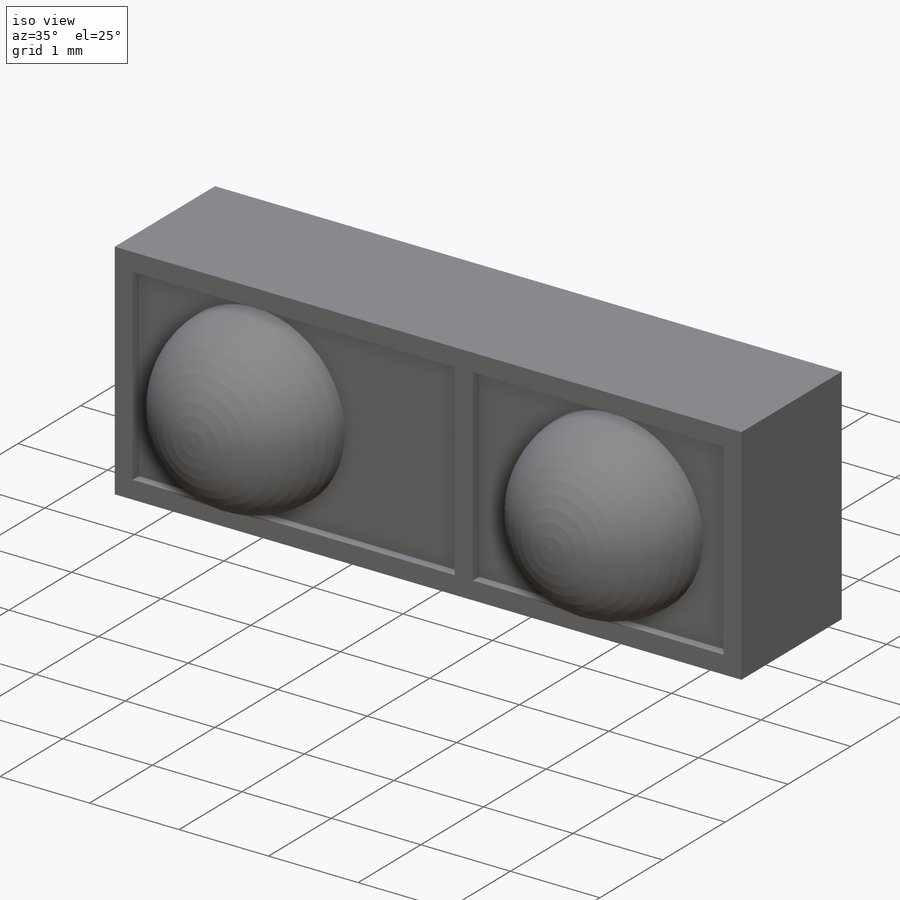
[diagram: iso view]
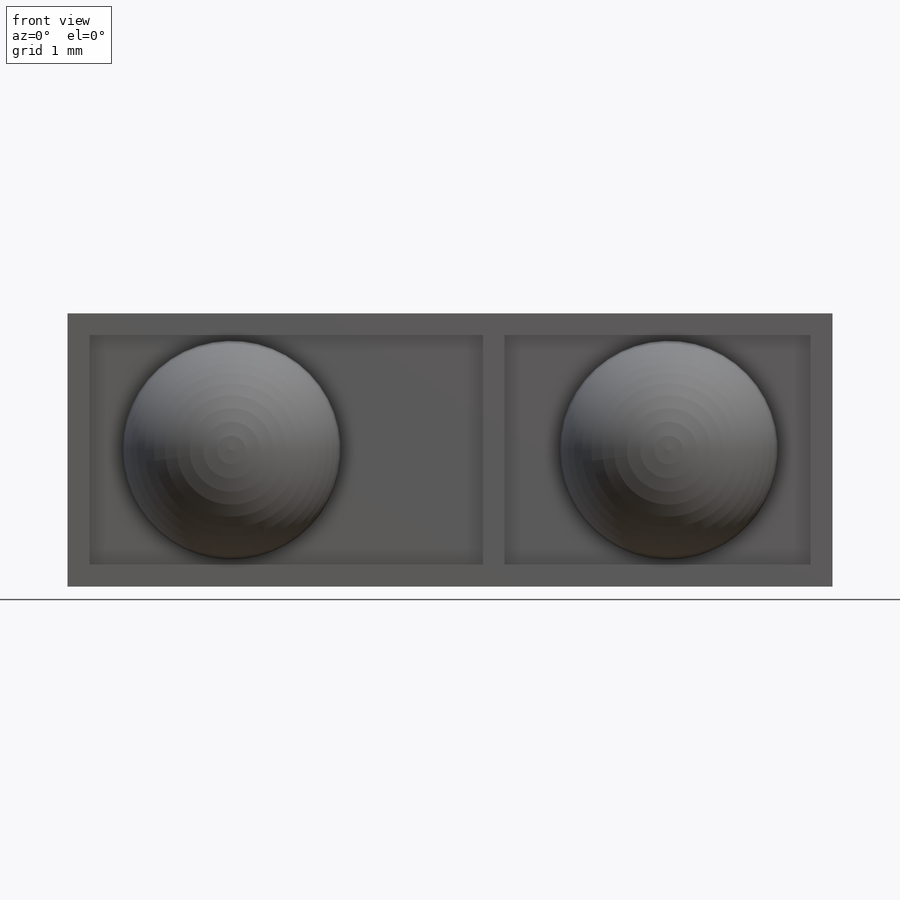
[diagram: front view]
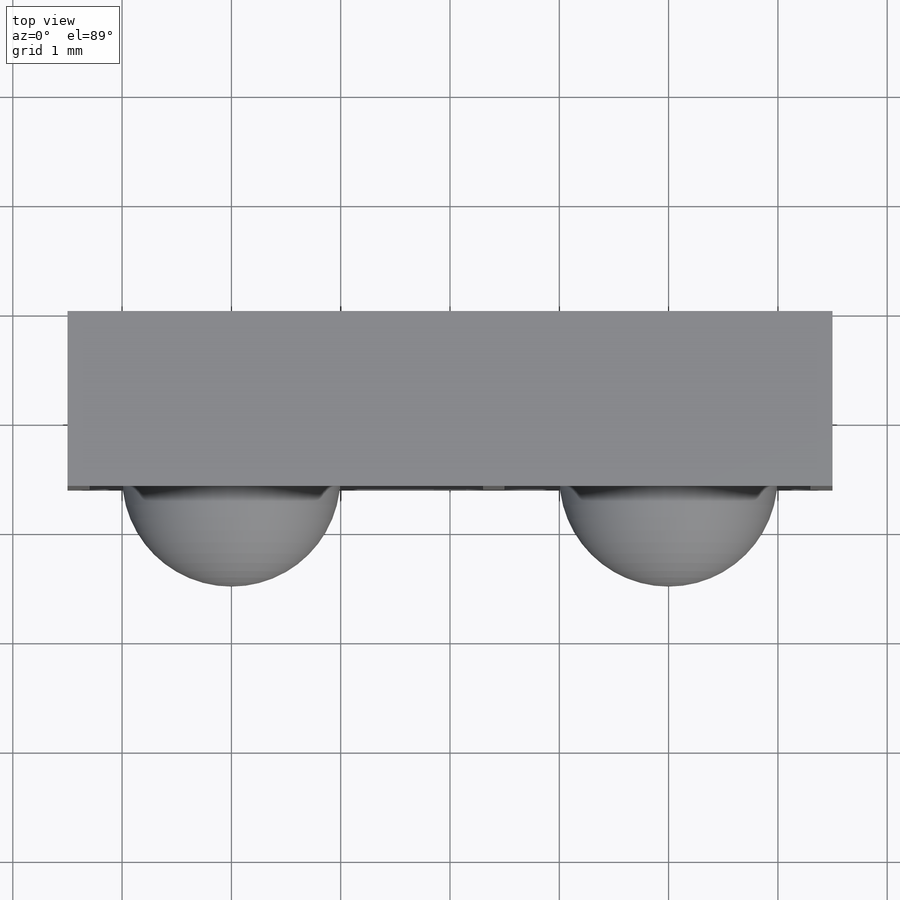
[diagram: top view]
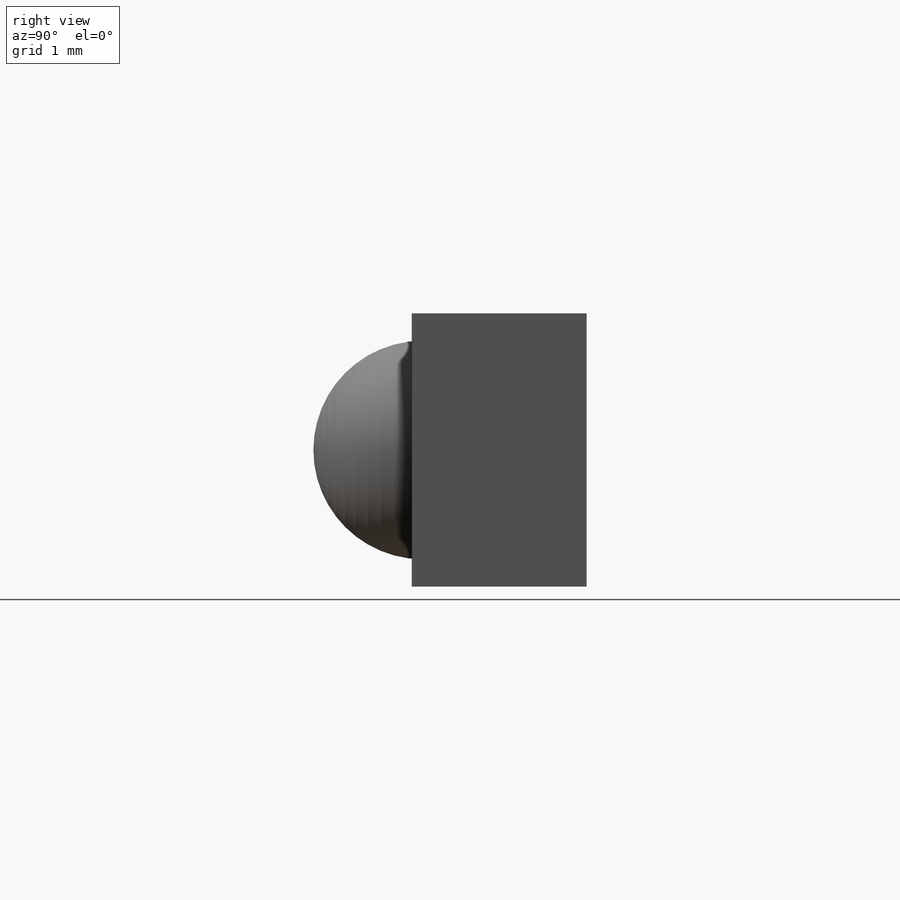
[diagram: right view]
SOLIDWORKS PART (.sldprt)
format: sldprt  version: not decoded by parser v0  size: 169,472 bytes
history: native  units: mm
features: sketch x3, extrude x2, material x1, revolve x1, pattern_linear x1 (+15 scaffold rows collapsed)
feature tree (23):
  scaffold x15  (default folders/planes/origin — collapsed)
  material  "Material <not specified>"
  sketch  "Sketch1"  dims[D1=7.0mm D2=2.5mm]
  extrude  "Extrude1"  Depth=1.5mm
  sketch  "Sketch2"  dims[D2=1.0mm D1=2.0mm]
  revolve  "Revolve1"  Angle=360deg
  pattern_linear  "LPattern1"  Count1=2 Count2=1 Spacing1=4mm Spacing2=50mm
  sketch  "Sketch3"  dims[D3=0.2mm D4=0.3mm D1=0.0mm D2=0.2mm]
  extrude  "Extrude2"  Depth=0.1mm
decode coverage: 7 of 7 modeling features carry decoded parameters
note: suppression state not decoded; provenance and decode notes live in map.json
